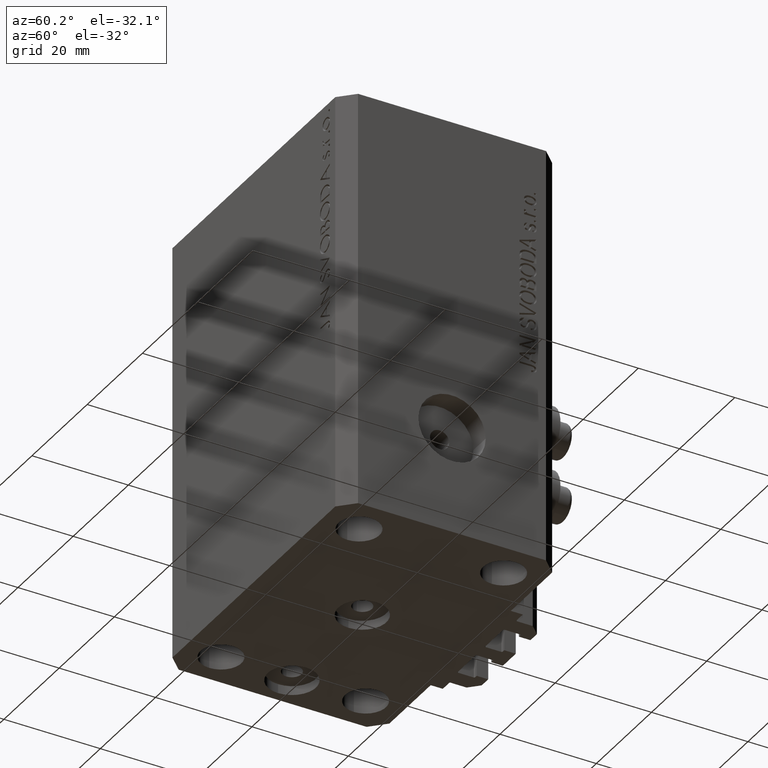
[diagram: clean part render]
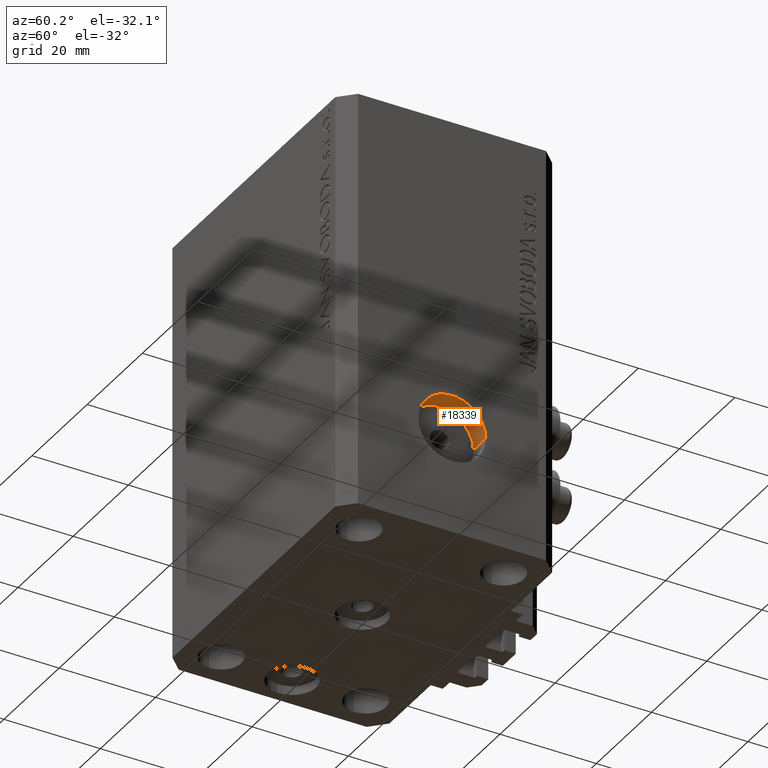
[diagram: same view with one face highlighted and labeled with its STEP entity id]
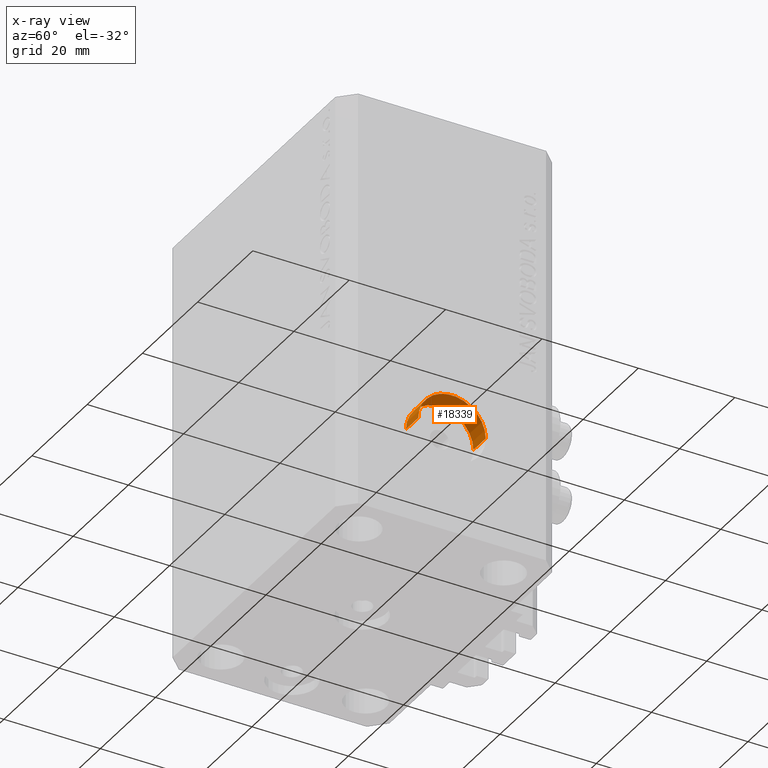
[diagram: x-ray of the same camera — body ghosted, the highlighted face saturated]
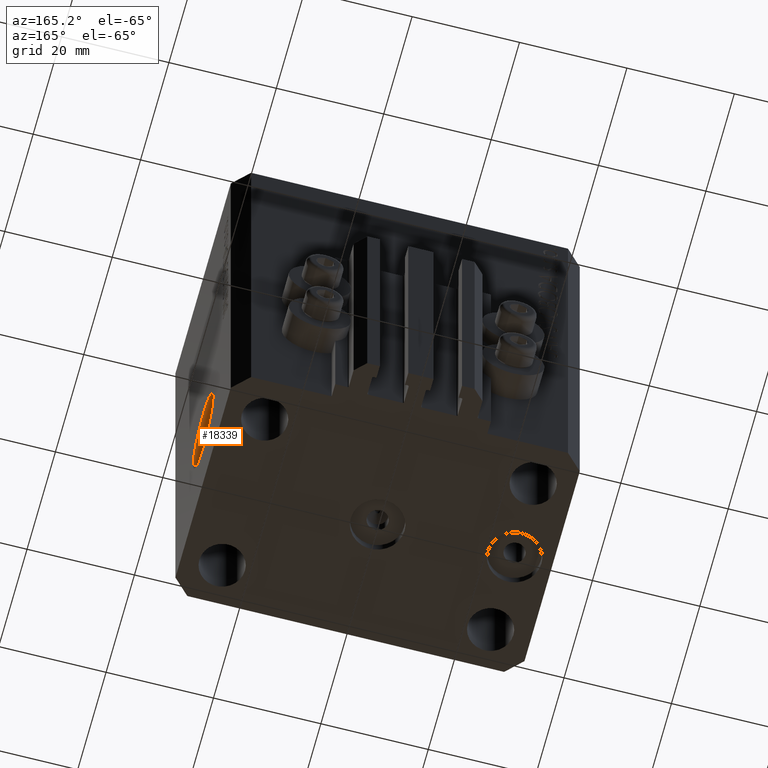
[diagram: same view with one face highlighted and labeled with its STEP entity id]
A machine part, auxiliary view. The second image highlights one B-rep face of the part: STEP entity #18339.
The next image is the same camera in x-ray: the body ghosted, the highlighted face saturated — about 0% of this face is hidden behind the body in this view.
A second angle (auxiliary view) of the same face is appended — the face is thin or edge-on in the first view.
In plain terms, the highlighted cylindrical surface (partial cylindrical patch) has radius 7 mm, axis along (1, -0, 0).
Its self-contained STEP definition (entity closure, byte-faithful):
#374 = CARTESIAN_POINT ( 'NONE',  ( 32.49999999999686651, 6.999999999999983125, -65.00000000000000000 ) ) ;
#510 = CARTESIAN_POINT ( 'NONE',  ( 27.99999999999686651, 7.000000000000042633, -65.00000000000000000 ) ) ;
#514 = DIRECTION ( 'NONE',  ( 1.338215252896394112E-14, 1.000000000000000000, 0.000000000000000000 ) ) ;
#1857 = EDGE_CURVE ( 'NONE', #24571, #38331, #30017, .T. ) ;
#2060 = DIRECTION ( 'NONE',  ( 1.000000000000000000, -1.334402673828348976E-14, -0.000000000000000000 ) ) ;
#5199 = VECTOR ( 'NONE', #44651, 1000.000000000000000 ) ;
#5981 = EDGE_CURVE ( 'NONE', #8657, #8240, #7743, .T. ) ;
#7743 = LINE ( 'NONE', #22635, #33657 ) ;
#8240 = VERTEX_POINT ( 'NONE', #26750 ) ;
#8657 = VERTEX_POINT ( 'NONE', #38405 ) ;
#12016 = DIRECTION ( 'NONE',  ( 1.000000000000000000, -1.334402673828349134E-14, 0.000000000000000000 ) ) ;
#12796 = EDGE_CURVE ( 'NONE', #38331, #8240, #44179, .T. ) ;
#13030 = ORIENTED_EDGE ( 'NONE', *, *, #12796, .T. ) ;
#15515 = ORIENTED_EDGE ( 'NONE', *, *, #32413, .F. ) ;
#18339 = ADVANCED_FACE ( 'NONE', ( #37329 ), #19821, .F. ) ;
#19821 = CYLINDRICAL_SURFACE ( 'NONE', #21490, 7.000000000000000000 ) ;
#20281 = AXIS2_PLACEMENT_3D ( 'NONE', #23301, #41516, #514 ) ;
#21490 = AXIS2_PLACEMENT_3D ( 'NONE', #41408, #2060, #23425 ) ;
#21578 = EDGE_LOOP ( 'NONE', ( #36820, #15515, #35756, #13030 ) ) ;
#22635 = CARTESIAN_POINT ( 'NONE',  ( 27.99999999999668177, -6.999999999999957367, -65.00000000000000000 ) ) ;
#23301 = CARTESIAN_POINT ( 'NONE',  ( 27.99999999999677414, 4.270088556253899177E-14, -65.00000000000000000 ) ) ;
#23425 = DIRECTION ( 'NONE',  ( 1.338215252896394112E-14, 1.000000000000000000, 0.000000000000000000 ) ) ;
#24571 = VERTEX_POINT ( 'NONE', #31901 ) ;
#26409 = DIRECTION ( 'NONE',  ( 1.288651725011342390E-14, 1.000000000000000000, 0.000000000000000000 ) ) ;
#26750 = CARTESIAN_POINT ( 'NONE',  ( 32.49999999999668177, -7.000000000000018652, -65.00000000000000000 ) ) ;
#30017 = LINE ( 'NONE', #510, #5199 ) ;
#30232 = CARTESIAN_POINT ( 'NONE',  ( 32.49999999999677414, -1.734723475973671215E-14, -65.00000000000000000 ) ) ;
#30412 = AXIS2_PLACEMENT_3D ( 'NONE', #30232, #12016, #26409 ) ;
#31901 = CARTESIAN_POINT ( 'NONE',  ( 27.99999999999686651, 7.000000000000042633, -65.00000000000000000 ) ) ;
#32413 = EDGE_CURVE ( 'NONE', #24571, #8657, #46299, .T. ) ;
#33657 = VECTOR ( 'NONE', #37240, 1000.000000000000000 ) ;
#35756 = ORIENTED_EDGE ( 'NONE', *, *, #1857, .T. ) ;
#36820 = ORIENTED_EDGE ( 'NONE', *, *, #5981, .F. ) ;
#37240 = DIRECTION ( 'NONE',  ( 1.000000000000000000, -1.334402673828348976E-14, -0.000000000000000000 ) ) ;
#37329 = FACE_OUTER_BOUND ( 'NONE', #21578, .T. ) ;
#38331 = VERTEX_POINT ( 'NONE', #374 ) ;
#38405 = CARTESIAN_POINT ( 'NONE',  ( 27.99999999999668177, -6.999999999999957367, -65.00000000000000000 ) ) ;
#41408 = CARTESIAN_POINT ( 'NONE',  ( 27.99999999999677414, 4.270088556253899177E-14, -65.00000000000000000 ) ) ;
#41516 = DIRECTION ( 'NONE',  ( 1.000000000000000000, -1.334402673828349134E-14, 0.000000000000000000 ) ) ;
#44179 = CIRCLE ( 'NONE', #30412, 7.000000000000000000 ) ;
#44651 = DIRECTION ( 'NONE',  ( 1.000000000000000000, -1.334402673828348976E-14, -0.000000000000000000 ) ) ;
#46299 = CIRCLE ( 'NONE', #20281, 7.000000000000000000 ) ;